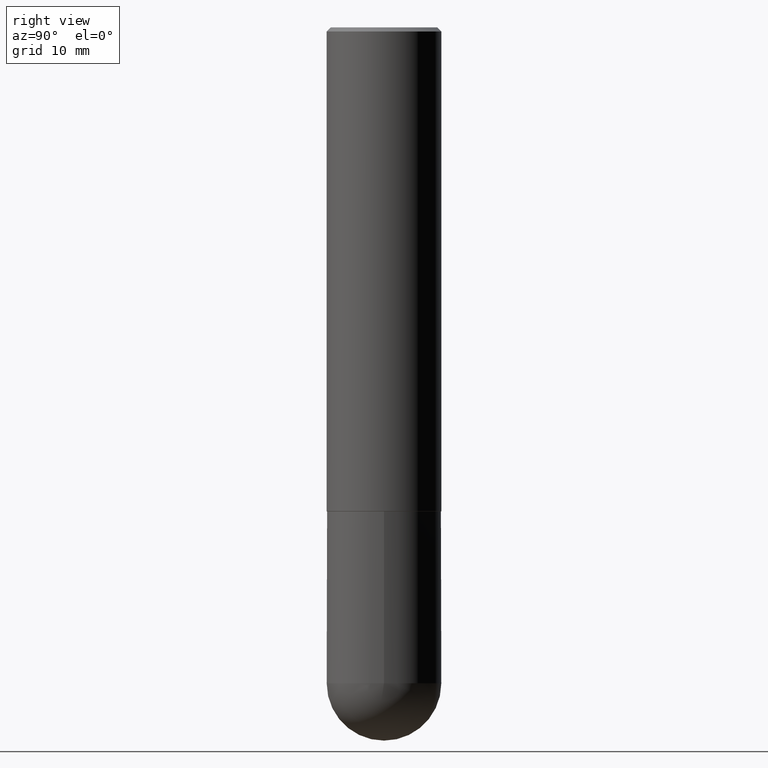
[diagram: clean part render]
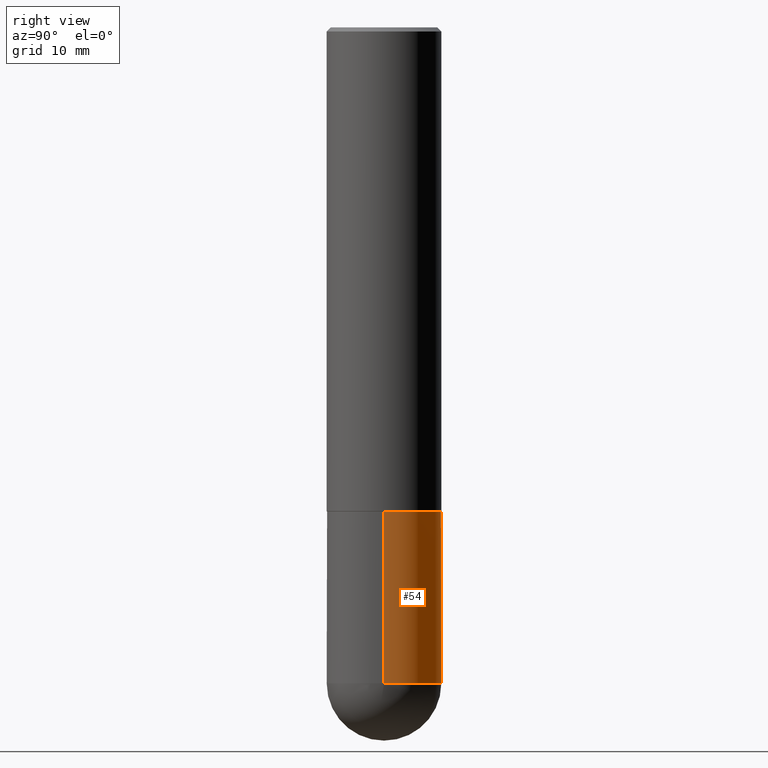
[diagram: same view with one face highlighted and labeled with its STEP entity id]
A machine part, right view. The second image highlights one B-rep face of the part: STEP entity #54.
In plain terms, the highlighted cylindrical surface (partial cylindrical patch) has radius 7.1438 mm, axis along (-0, 0, 1).
Its self-contained STEP definition (entity closure, byte-faithful):
#1 = LINE ( 'NONE', #261, #167 ) ;
#27 = AXIS2_PLACEMENT_3D ( 'NONE', #121, #207, #307 ) ;
#28 = DIRECTION ( 'NONE',  ( -2.445468806185136877E-29, 3.491481338843145188E-15, 1.000000000000000000 ) ) ;
#54 = ADVANCED_FACE ( 'NONE', ( #364 ), #401, .T. ) ;
#61 = VECTOR ( 'NONE', #28, 39.37007874015748143 ) ;
#66 = ORIENTED_EDGE ( 'NONE', *, *, #68, .T. ) ;
#68 = EDGE_CURVE ( 'NONE', #291, #356, #86, .T. ) ;
#82 = ORIENTED_EDGE ( 'NONE', *, *, #403, .T. ) ;
#86 = LINE ( 'NONE', #335, #61 ) ;
#92 = DIRECTION ( 'NONE',  ( -2.445468806185136597E-29, 3.491481338843145583E-15, 1.000000000000000000 ) ) ;
#98 = CARTESIAN_POINT ( 'NONE',  ( 7.871352719908407300E-29, -1.123820555940137375E-14, -3.218749999999999556 ) ) ;
#99 = CARTESIAN_POINT ( 'NONE',  ( -0.2812500000000000000, -7.766835425251639371E-15, -2.374999999999999556 ) ) ;
#107 = VERTEX_POINT ( 'NONE', #279 ) ;
#119 = DIRECTION ( 'NONE',  ( 1.000000000000000000, -6.982962677686266711E-15, 4.876176775795935232E-29 ) ) ;
#121 = CARTESIAN_POINT ( 'NONE',  ( 5.807988414689698296E-29, -8.292268179752468540E-15, -2.374999999999999556 ) ) ;
#123 = DIRECTION ( 'NONE',  ( -2.445468806185136597E-29, 3.491481338843145583E-15, 1.000000000000000000 ) ) ;
#124 = DIRECTION ( 'NONE',  ( -2.445468806185136877E-29, 3.491481338843145188E-15, 1.000000000000000000 ) ) ;
#133 = EDGE_LOOP ( 'NONE', ( #381, #66, #342, #203, #82 ) ) ;
#134 = CIRCLE ( 'NONE', #277, 0.2812500000000000555 ) ;
#135 = CIRCLE ( 'NONE', #27, 0.2812500000000000000 ) ;
#145 = CIRCLE ( 'NONE', #400, 0.2812500000000000555 ) ;
#154 = CARTESIAN_POINT ( 'NONE',  ( -0.2812500000000000555, -7.766835425251640949E-15, -3.218749999999999556 ) ) ;
#159 = EDGE_CURVE ( 'NONE', #165, #291, #134, .T. ) ;
#165 = VERTEX_POINT ( 'NONE', #372 ) ;
#167 = VECTOR ( 'NONE', #124, 39.37007874015748143 ) ;
#195 = DIRECTION ( 'NONE',  ( -2.445468806185136597E-29, 3.491481338843145583E-15, 1.000000000000000000 ) ) ;
#203 = ORIENTED_EDGE ( 'NONE', *, *, #337, .F. ) ;
#207 = DIRECTION ( 'NONE',  ( -2.445468806185136597E-29, 3.491481338843145583E-15, 1.000000000000000000 ) ) ;
#228 = VERTEX_POINT ( 'NONE', #333 ) ;
#251 = DIRECTION ( 'NONE',  ( 1.000000000000000000, -6.982962677686268288E-15, 0.000000000000000000 ) ) ;
#258 = EDGE_CURVE ( 'NONE', #107, #356, #135, .T. ) ;
#261 = CARTESIAN_POINT ( 'NONE',  ( 0.2812500000000000555, -1.963958253099262907E-15, 1.371424718192607012E-29 ) ) ;
#273 = AXIS2_PLACEMENT_3D ( 'NONE', #371, #92, #119 ) ;
#277 = AXIS2_PLACEMENT_3D ( 'NONE', #98, #123, #251 ) ;
#279 = CARTESIAN_POINT ( 'NONE',  ( 0.2812500000000000000, -1.025622643285173184E-14, -2.374999999999999556 ) ) ;
#283 = DIRECTION ( 'NONE',  ( 1.000000000000000000, -6.982962677686268288E-15, 0.000000000000000000 ) ) ;
#291 = VERTEX_POINT ( 'NONE', #154 ) ;
#294 = CARTESIAN_POINT ( 'NONE',  ( 7.871352719908407300E-29, -1.123820555940137375E-14, -3.218749999999999556 ) ) ;
#307 = DIRECTION ( 'NONE',  ( 1.000000000000000000, -6.982962677686266711E-15, 0.000000000000000000 ) ) ;
#333 = CARTESIAN_POINT ( 'NONE',  ( 0.2812500000000000555, -1.172919512267618602E-14, -3.218749999999999556 ) ) ;
#335 = CARTESIAN_POINT ( 'NONE',  ( -0.2812500000000000555, 1.998401444325282167E-15, -1.383450494134192269E-29 ) ) ;
#337 = EDGE_CURVE ( 'NONE', #228, #107, #1, .T. ) ;
#342 = ORIENTED_EDGE ( 'NONE', *, *, #258, .F. ) ;
#356 = VERTEX_POINT ( 'NONE', #99 ) ;
#364 = FACE_OUTER_BOUND ( 'NONE', #133, .T. ) ;
#371 = CARTESIAN_POINT ( 'NONE',  ( 0.000000000000000000, 0.000000000000000000, 0.000000000000000000 ) ) ;
#372 = CARTESIAN_POINT ( 'NONE',  ( 1.963958253099340610E-15, 0.2812499999999886757, -3.218750000000000888 ) ) ;
#381 = ORIENTED_EDGE ( 'NONE', *, *, #159, .T. ) ;
#400 = AXIS2_PLACEMENT_3D ( 'NONE', #294, #195, #283 ) ;
#401 = CYLINDRICAL_SURFACE ( 'NONE', #273, 0.2812500000000000555 ) ;
#403 = EDGE_CURVE ( 'NONE', #228, #165, #145, .T. ) ;